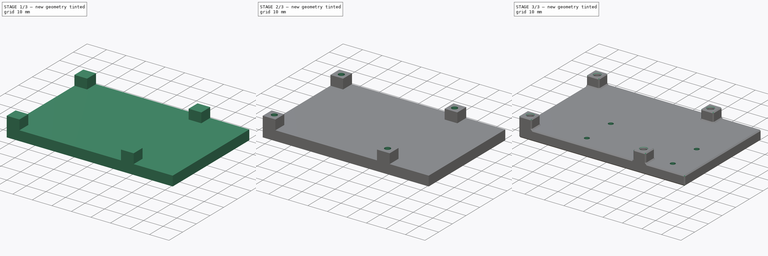
[diagram: build sequence overview — one tinted view per stage of 3, left to right]
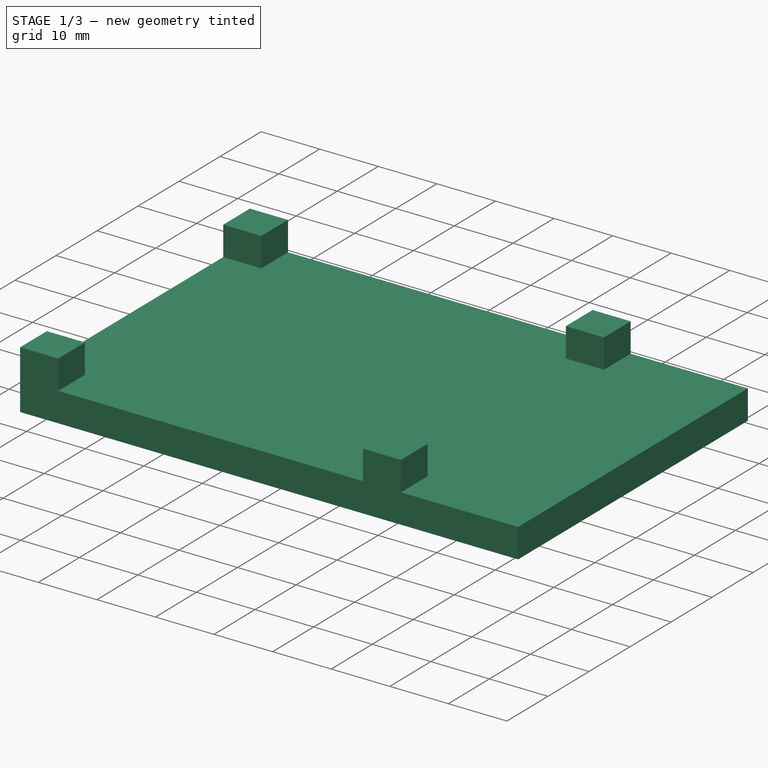
[diagram: stage 1 of 3 — iso view after this stage's code; geometry added in this stage tinted green]
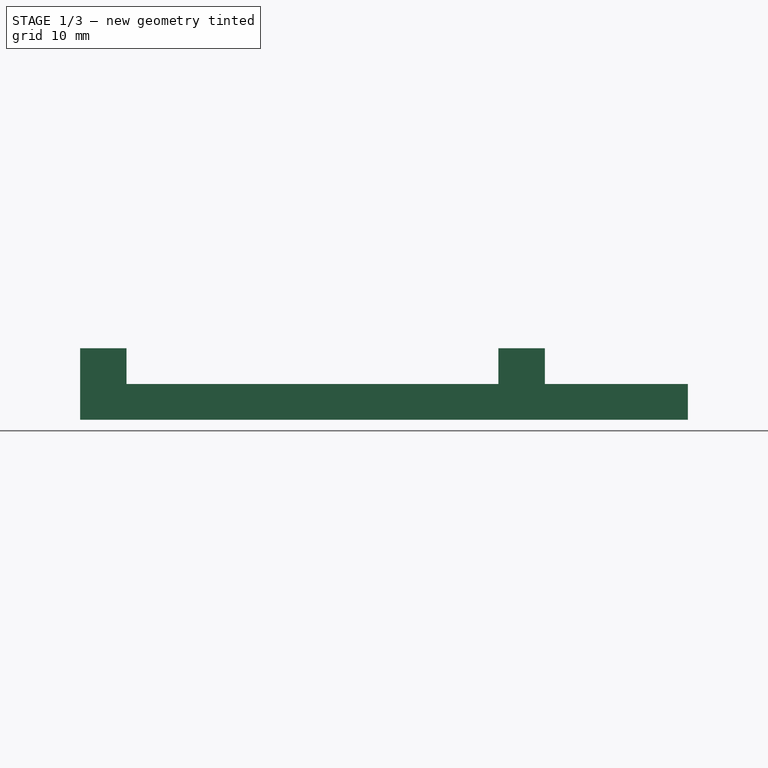
[diagram: stage 1 of 3 — front view after this stage's code; geometry added in this stage tinted green]
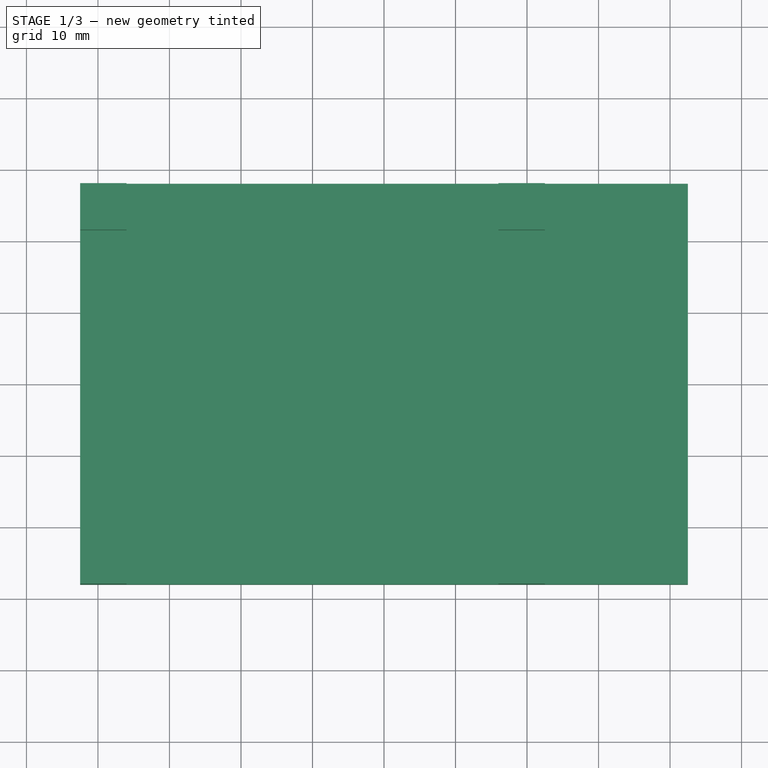
[diagram: stage 1 of 3 — top view after this stage's code; geometry added in this stage tinted green]
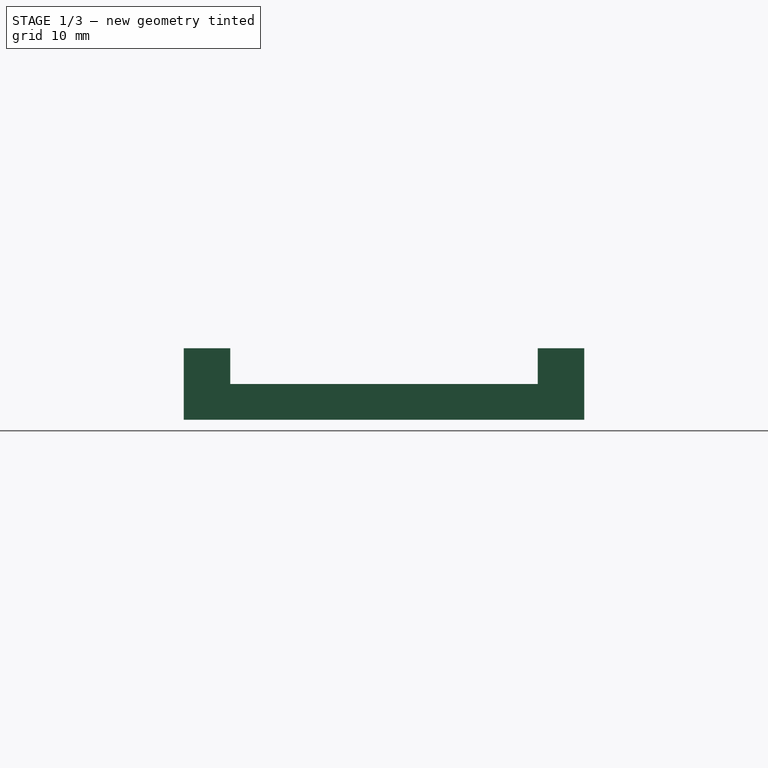
[diagram: stage 1 of 3 — right view after this stage's code; geometry added in this stage tinted green]
FCSTD DOCUMENT  (FreeCAD 1.1R20260414 (Git shallow))
Label: 01_rpi_rail_holder
License: All rights reserved
LicenseURL: https://en.wikipedia.org/wiki/All_rights_reserved
objects: Sketcher::SketchObject×4, PartDesign::Pad×2, PartDesign::Pocket×2, App::Point×1, PartDesign::Chamfer×1, PartDesign::Body×1
note: 24 computed .brp shape members not serialized (recipe doc carries the construction recipe); baked Part::Feature solids carry a one-line shape summary decoded from their .brp

FEATURE [App::Point] Origin001
  Role = Origin
FEATURE [Sketcher::SketchObject] Sketch
  ArcFitTolerance = 1e-06
  AttachmentSupport = -> [Origin]
  ExternalTypes = [0]
  FullyConstrained = true
  MakeInternals = false
  MapMode = 5
  _ExternalGeoVersion = 1
  sketch-geometry (5):
    g0: LineSegment StartX=-42.5 StartY=28 StartZ=0 EndX=-42.5 EndY=-28 EndZ=0
    g1: LineSegment StartX=-42.5 StartY=-28 StartZ=0 EndX=42.5 EndY=-28 EndZ=0
    g2: LineSegment StartX=42.5 StartY=-28 StartZ=0 EndX=42.5 EndY=28 EndZ=0
    g3: LineSegment StartX=42.5 StartY=28 StartZ=0 EndX=-42.5 EndY=28 EndZ=0
    g4: LineSegment [constr] StartX=-42.5 StartY=28 StartZ=0 EndX=42.5 EndY=-28 EndZ=0
  constraints (13):
    c: Coincident(g0,g1)
    c: Coincident(g1,g2)
    c: Coincident(g2,g3)
    c: Coincident(g3,g0)
    c: Vertical(g0)
    c: Vertical(g2)
    c: Horizontal(g1)
    c: Horizontal(g3)
    c: Coincident(g4,g0)
    c: Coincident(g4,g1)
    c: Symmetric(g0,g1,g-1)
    c: DistanceX(g3,g3) = 85
    c: DistanceY(g0,g0) = 56
FEATURE [PartDesign::Pad] Pad
  Direction = (0,0,1)
  Length = 5
  Length2 = 10
  Profile = -> Sketch
  ReferenceAxis = -> Sketch [N_Axis]
  Refine = true
  SideType = 0
  Suppressed = false
  Type = 0
  Type2 = 0
FEATURE [Sketcher::SketchObject] Sketch001
  ArcFitTolerance = 1e-06
  AttachmentSupport = -> [Pad]
  ExternalGeometry = -> [Pad]
  ExternalTypes = [0,0,0,0]
  FullyConstrained = true
  MakeInternals = false
  MapMode = 5
  Placement = pos=(0,0,5) rot=(0,0,1;0rad)
  _ExternalGeoVersion = 1
  sketch-geometry (17):
    g0: LineSegment StartX=-42.5 StartY=28 StartZ=0 EndX=-42.5 EndY=21.5 EndZ=0
    g1: LineSegment StartX=-42.5 StartY=21.5 StartZ=0 EndX=-36 EndY=21.5 EndZ=0
    g2: LineSegment StartX=-36 StartY=21.5 StartZ=0 EndX=-36 EndY=28 EndZ=0
    g3: LineSegment StartX=-36 StartY=28 StartZ=0 EndX=-42.5 EndY=28 EndZ=0
    g4: LineSegment StartX=-42.5 StartY=-28 StartZ=0 EndX=-36 EndY=-28 EndZ=0
    g5: LineSegment StartX=-36 StartY=-28 StartZ=0 EndX=-36 EndY=-21.5 EndZ=0
    g6: LineSegment StartX=-36 StartY=-21.5 StartZ=0 EndX=-42.5 EndY=-21.5 EndZ=0
    g7: LineSegment StartX=-42.5 StartY=-21.5 StartZ=0 EndX=-42.5 EndY=-28 EndZ=0
    g8: LineSegment StartX=16 StartY=28 StartZ=0 EndX=16 EndY=21.5 EndZ=0
    g9: LineSegment StartX=16 StartY=21.5 StartZ=0 EndX=22.5 EndY=21.5 EndZ=0
    g10: LineSegment StartX=22.5 StartY=21.5 StartZ=0 EndX=22.5 EndY=28 EndZ=0
    g11: LineSegment StartX=22.5 StartY=28 StartZ=0 EndX=16 EndY=28 EndZ=0
    g12: LineSegment StartX=16 StartY=-28 StartZ=0 EndX=22.5 EndY=-28 EndZ=0
    g13: LineSegment StartX=22.5 StartY=-28 StartZ=0 EndX=22.5 EndY=-21.5 EndZ=0
    g14: LineSegment StartX=22.5 StartY=-21.5 StartZ=0 EndX=16 EndY=-21.5 EndZ=0
    g15: LineSegment StartX=16 StartY=-21.5 StartZ=0 EndX=16 EndY=-28 EndZ=0
    g16: LineSegment [constr] StartX=22.5 StartY=21.5 StartZ=0 EndX=22.5 EndY=-21.5 EndZ=0
  constraints (48):
    c: Coincident(g0,g1)
    c: Coincident(g1,g2)
    c: Coincident(g2,g3)
    c: Coincident(g3,g0)
    c: Vertical(g0)
    c: Vertical(g2)
    c: Horizontal(g1)
    c: Horizontal(g3)
    c: Coincident(g0,g-4)
    c: Coincident(g4,g5)
    c: Coincident(g5,g6)
    c: Coincident(g6,g7)
    c: Coincident(g7,g4)
    c: Horizontal(g4)
    c: Horizontal(g6)
    c: Vertical(g5)
    c: Vertical(g7)
    c: Coincident(g4,g-5)
    c: Distance(g3,g3) = 6.5
    c: Equal(g3,g2)
    c: Equal(g3,g6)
    c: Equal(g3,g5)
    c: Coincident(g8,g9)
    c: Coincident(g9,g10)
    c: Coincident(g10,g11)
    c: Coincident(g11,g8)
    c: Vertical(g8)
    c: Vertical(g10)
    c: Horizontal(g9)
    c: Horizontal(g11)
    c: PointOnObject(g8,g-3)
    c: Coincident(g12,g13)
    c: Coincident(g13,g14)
    c: Coincident(g14,g15)
    c: Coincident(g15,g12)
    c: Horizontal(g12)
    c: Horizontal(g14)
    c: Vertical(g13)
    c: Vertical(g15)
    c: PointOnObject(g12,g-5)
    c: Equal(g2,g8)
    c: Equal(g3,g9)
    c: Equal(g1,g14)
    c: Equal(g1,g15)
    c: DistanceX(g2,g8) = 52
    c: Coincident(g16,g9)
    c: Coincident(g16,g13)
    c: Vertical(g16)
FEATURE [PartDesign::Pad] Pad001
  BaseFeature = -> Pad
  Direction = (0,0,1)
  Length = 5
  Length2 = 10
  Profile = -> Sketch001
  ReferenceAxis = -> Sketch001 [N_Axis]
  Refine = true
  SideType = 0
  Suppressed = false
  Type = 0
  Type2 = 0
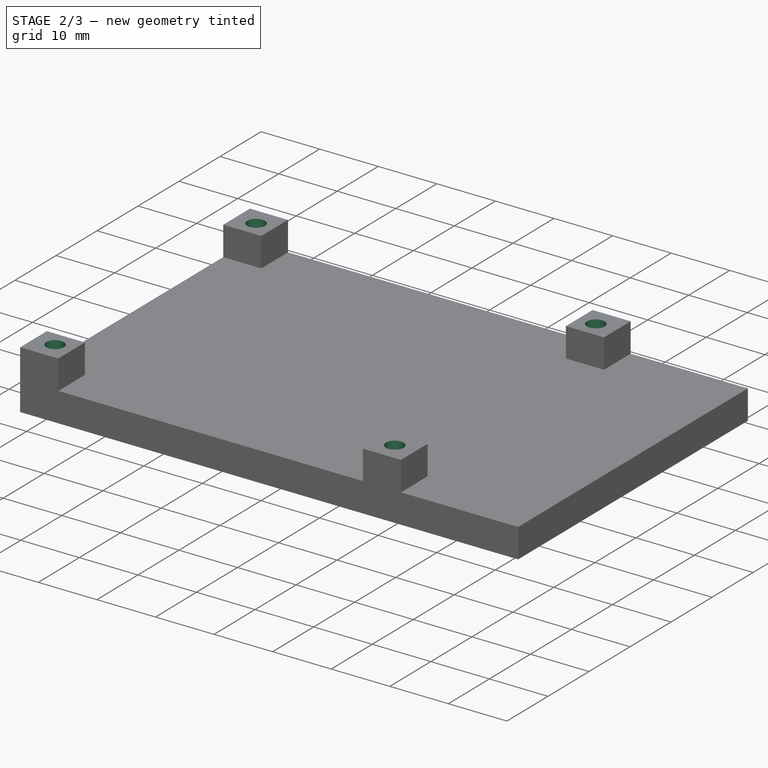
[diagram: stage 2 of 3 — iso view after this stage's code; geometry added in this stage tinted green]
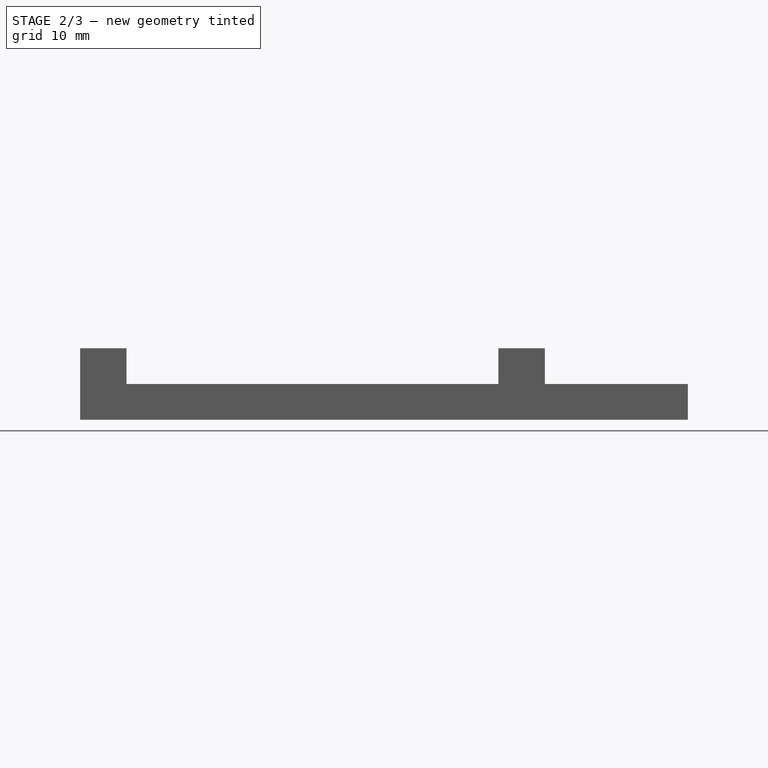
[diagram: stage 2 of 3 — front view after this stage's code; geometry added in this stage tinted green]
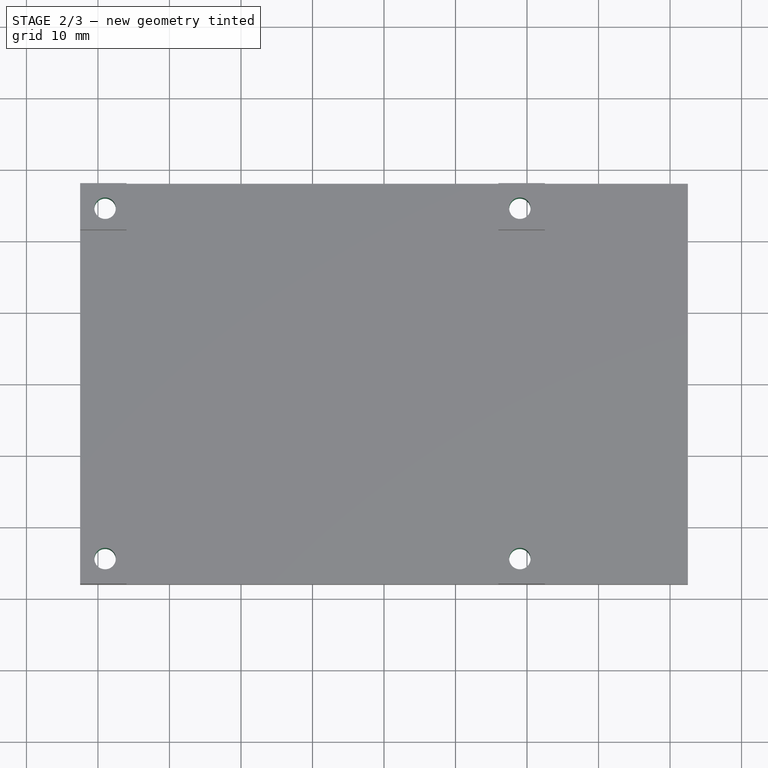
[diagram: stage 2 of 3 — top view after this stage's code; geometry added in this stage tinted green]
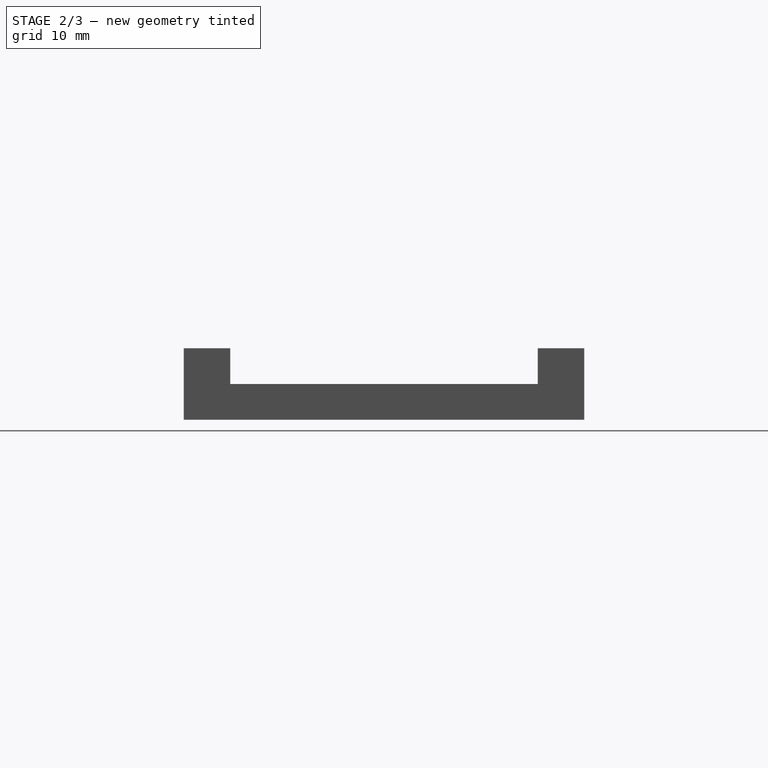
[diagram: stage 2 of 3 — right view after this stage's code; geometry added in this stage tinted green]
FEATURE [Sketcher::SketchObject] Sketch002
  ArcFitTolerance = 1e-06
  AttachmentSupport = -> [Pad001]
  ExternalGeometry = -> [Pad001]
  ExternalTypes = [0,0,0,0,0,0,0,0,0,0,0,0,0,0,0,0]
  FullyConstrained = false
  MakeInternals = false
  MapMode = 5
  Placement = pos=(0,0,10) rot=(0,0,1;0rad)
  _ExternalGeoVersion = 1
  sketch-geometry (8):
    g0: Circle CenterX=-39 CenterY=24.5 CenterZ=0 NormalX=0 NormalY=0 NormalZ=1 AngleXU=0 Radius=1.5
    g1: Circle CenterX=-39 CenterY=-24.5 CenterZ=0 NormalX=0 NormalY=0 NormalZ=1 AngleXU=0 Radius=1.5
    g2: Circle CenterX=19 CenterY=24.5 CenterZ=0 NormalX=0 NormalY=0 NormalZ=1 AngleXU=0 Radius=1.5
    g3: Circle CenterX=19 CenterY=-24.5 CenterZ=0 NormalX=0 NormalY=0 NormalZ=1 AngleXU=0 Radius=1.5
    g4: LineSegment [constr] StartX=-39 StartY=24.5 StartZ=0 EndX=19 EndY=24.5 EndZ=0
    g5: LineSegment [constr] StartX=19 StartY=24.5 StartZ=0 EndX=19 EndY=-24.5 EndZ=0
    g6: LineSegment [constr] StartX=19 StartY=-24.5 StartZ=0 EndX=-39 EndY=-24.5 EndZ=0
    g7: LineSegment [constr] StartX=-39 StartY=24.5 StartZ=0 EndX=-39 EndY=-24.5 EndZ=0
  constraints (21):
    c: Diameter(g0) = 3
    c: Distance(g0,g-3) = 3.5
    c: Distance(g0,g-6) = 3.5
    c: Equal(g0,g1)
    c: Distance(g1,g-9) = 3.5
    c: Equal(g0,g2)
    c: Equal(g0,g3)
    c: Coincident(g4,g0)
    c: Coincident(g4,g2)
    c: Horizontal(g4)
    c: Coincident(g5,g2)
    c: Coincident(g5,g3)
    c: Vertical(g5)
    c: Coincident(g6,g3)
    c: Coincident(g6,g1)
    c: Horizontal(g6)
    c: Coincident(g7,g0)
    c: Coincident(g7,g1)
    c: DistanceX(g4,g4) = 58
    c: DistanceY(g7,g7) = 49
    c: Distance(g2,g-13) = 3.5
FEATURE [PartDesign::Pocket] Pocket
  BaseFeature = -> Pad001
  Direction = (0,0,-1)
  Length = 5
  Length2 = 5
  Profile = -> Sketch002
  ReferenceAxis = -> Sketch002 [N_Axis]
  Refine = true
  SideType = 0
  Suppressed = false
  Type = 1
  Type2 = 0
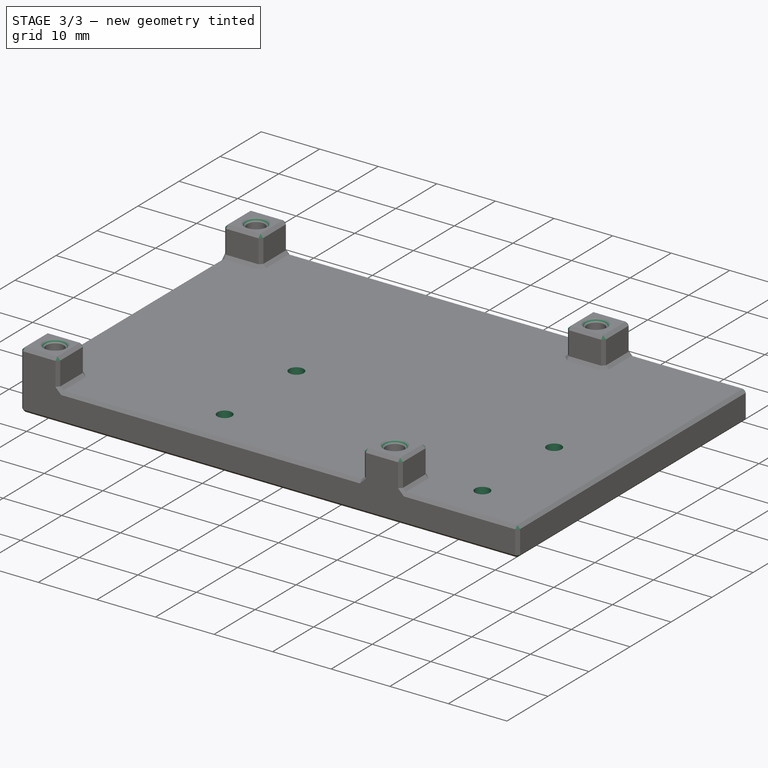
[diagram: stage 3 of 3 — iso view after this stage's code; geometry added in this stage tinted green]
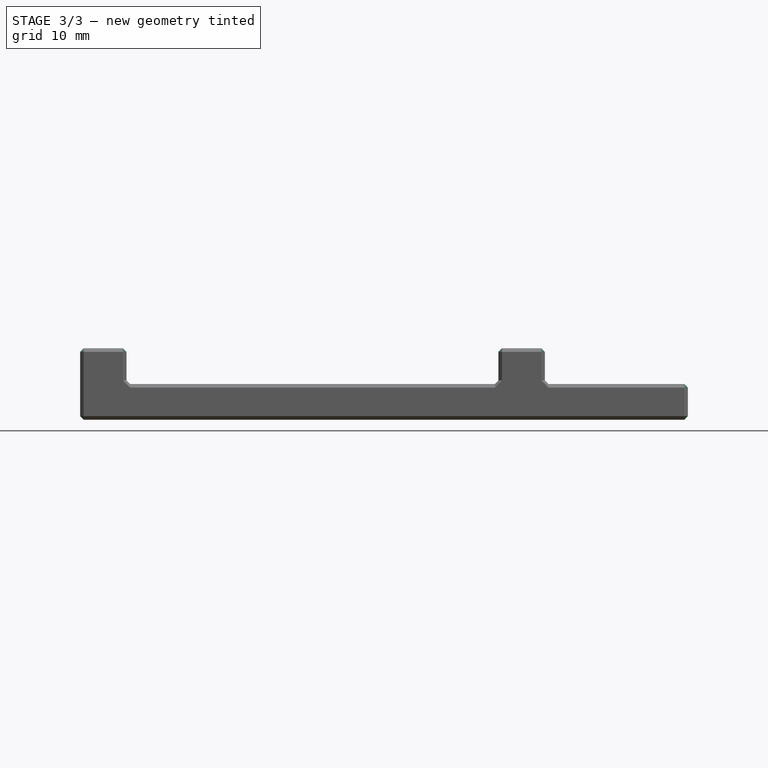
[diagram: stage 3 of 3 — front view after this stage's code; geometry added in this stage tinted green]
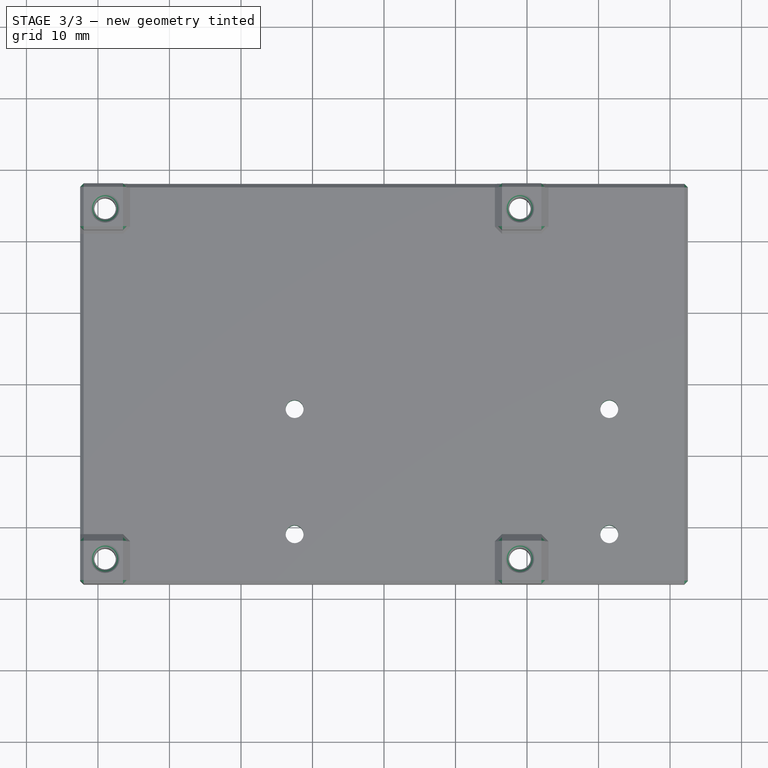
[diagram: stage 3 of 3 — top view after this stage's code; geometry added in this stage tinted green]
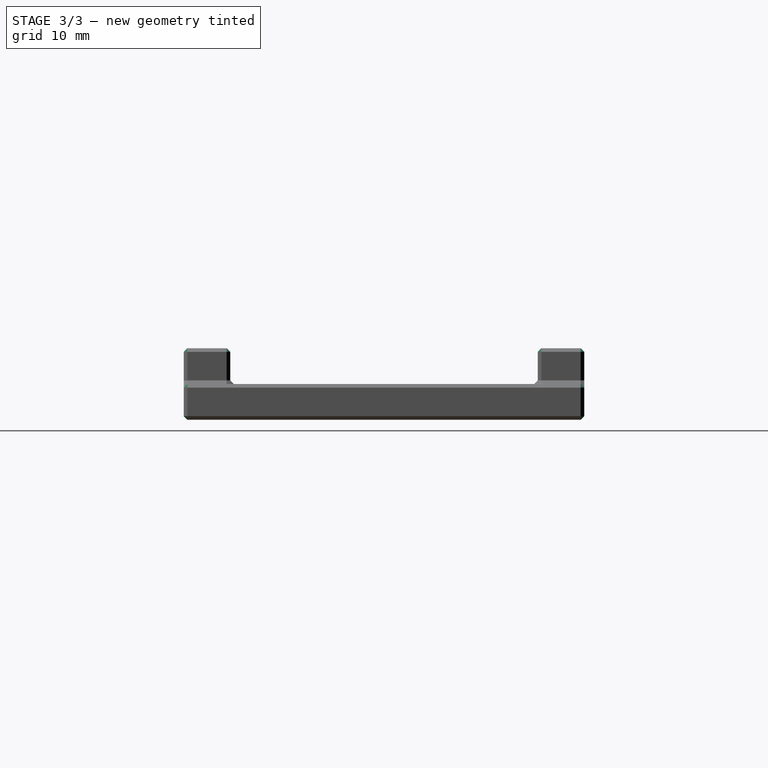
[diagram: stage 3 of 3 — right view after this stage's code; geometry added in this stage tinted green]
FEATURE [Sketcher::SketchObject] Sketch003
  ArcFitTolerance = 1e-06
  AttachmentSupport = -> [Pocket]
  ExternalGeometry = -> [Pocket]
  ExternalTypes = [0,0,0,0,0]
  FullyConstrained = true
  MakeInternals = false
  MapMode = 5
  Placement = pos=(0,0,0) rot=(1,0,0;3.14159rad)
  _ExternalGeoVersion = 1
  sketch-geometry (8):
    g0: LineSegment [constr] StartX=31.5 StartY=28 StartZ=0 EndX=31.5 EndY=-28 EndZ=0
    g1: Circle CenterX=31.5 CenterY=21 CenterZ=0 NormalX=0 NormalY=0 NormalZ=1 AngleXU=0 Radius=1.25
    g2: Circle CenterX=31.5 CenterY=3.5 CenterZ=0 NormalX=0 NormalY=0 NormalZ=1 AngleXU=0 Radius=1.25
    g3: LineSegment [constr] StartX=-12.5 StartY=28 StartZ=0 EndX=-12.5 EndY=-28 EndZ=0
    g4: LineSegment [constr] StartX=31.5 StartY=21 StartZ=0 EndX=-12.5 EndY=21 EndZ=0
    g5: LineSegment [constr] StartX=31.5 StartY=3.5 StartZ=0 EndX=-12.5 EndY=3.5 EndZ=0
    g6: Circle CenterX=-12.5 CenterY=21 CenterZ=0 NormalX=0 NormalY=0 NormalZ=1 AngleXU=0 Radius=1.25
    g7: Circle CenterX=-12.5 CenterY=3.5 CenterZ=0 NormalX=0 NormalY=0 NormalZ=1 AngleXU=0 Radius=1.25
  constraints (25):
    c: PointOnObject(g0,g-3)
    c: PointOnObject(g0,g-5)
    c: Vertical(g0)
    c: Distance(g-7,g-4) = 23.5
    c: Distance(g-4,g0) = 11
    c: PointOnObject(g1,g0)
    c: Diameter(g1) = 2.5
    c: PointOnObject(g2,g0)
    c: Equal(g1,g2)
    c: DistanceY(g2,g1) = 17.5
    c: Distance(g2,g0) = 31.5
    c: PointOnObject(g3,g-3)
    c: PointOnObject(g3,g-5)
    c: Vertical(g3)
    c: Distance(g3,g-6) = 30
    c: Coincident(g4,g1)
    c: Horizontal(g4)
    c: Coincident(g5,g2)
    c: PointOnObject(g5,g3)
    c: Horizontal(g5)
    c: PointOnObject(g4,g3)
    c: Coincident(g6,g4)
    c: Coincident(g7,g5)
    c: Equal(g1,g6)
    c: Equal(g1,g7)
FEATURE [PartDesign::Pocket] Pocket001
  BaseFeature = -> Pocket
  Direction = (0,0,1)
  Length = 5
  Length2 = 5
  Profile = -> Sketch003
  ReferenceAxis = -> Sketch003 [N_Axis]
  Refine = true
  SideType = 0
  Suppressed = false
  Type = 1
  Type2 = 0
FEATURE [PartDesign::Chamfer] Chamfer
  Angle = 45
  Base = -> Pocket001 [Face3,Face2,Face4,Face5,Face14,Face18,Face21,Face24,Face23,Face28,Face25,Face26,Face15,Face19,Face17,Face22,Face27,Face20,Edge8,Edge5,Edge6,Edge7,Edge10,Edge9,Edge12,Edge11]
  BaseFeature = -> Pocket001
  ChamferType = 0
  FlipDirection = false
  Refine = true
  Size = 0.5
  Size2 = 1
  SupportTransform = false
  Suppressed = false
  UseAllEdges = false
FEATURE [PartDesign::Body] Body
  AllowCompound = true
  Group = -> [Sketch,Pad,Sketch001,Pad001,Sketch002,Pocket,Sketch003,Pocket001,Chamfer]
  Origin = -> Origin
  Tip = -> Chamfer
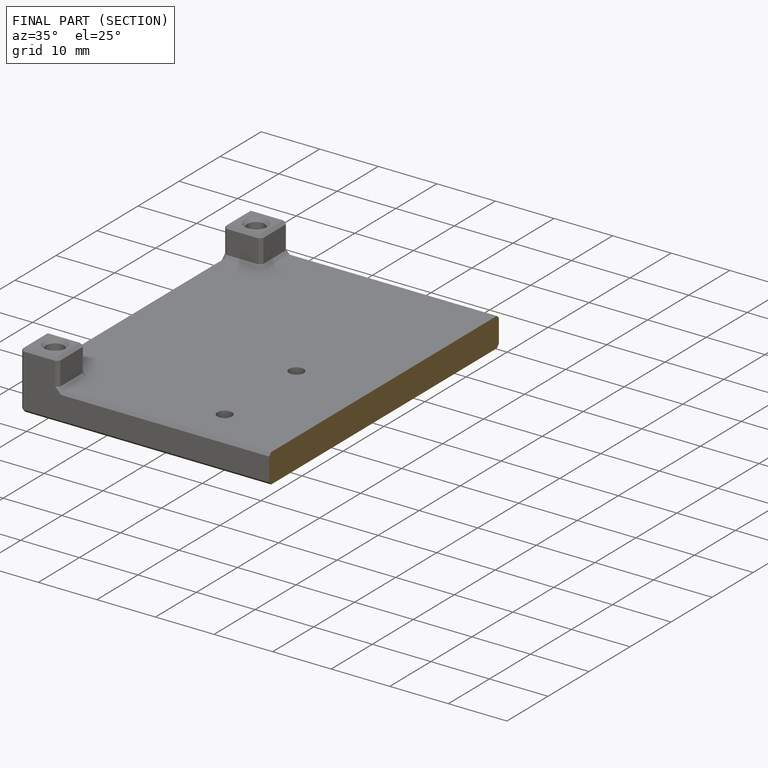
[diagram: finished part — half-section view (interior)]
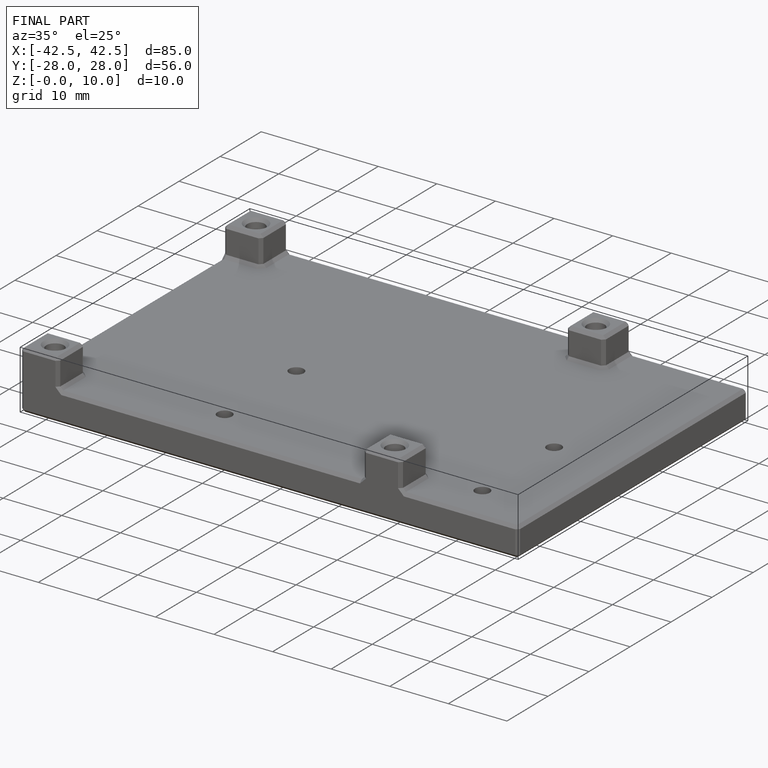
[diagram: finished part — iso view with bounding-box wireframe]
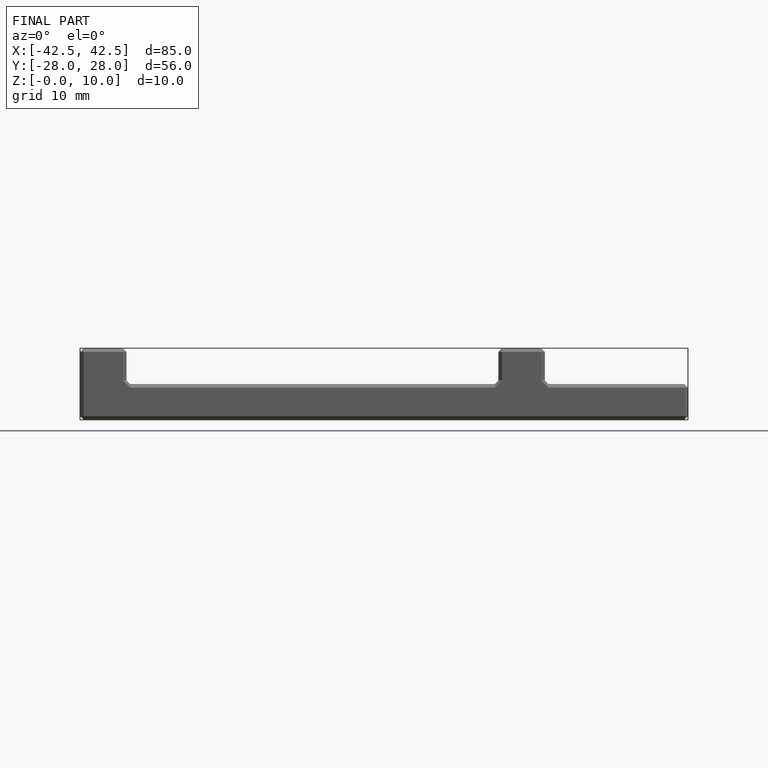
[diagram: finished part — front view with bounding-box wireframe]
